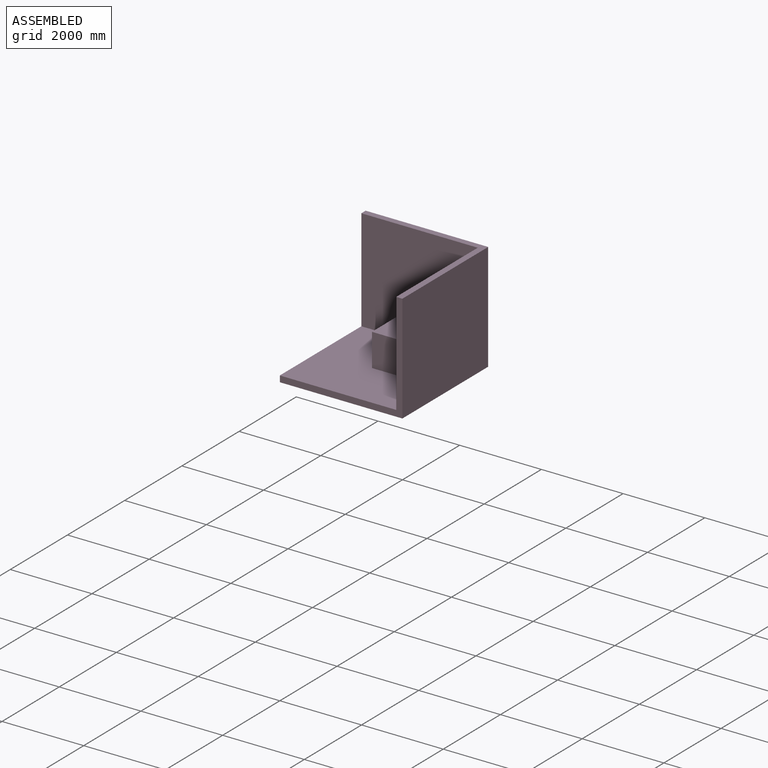
[diagram: assembled view]
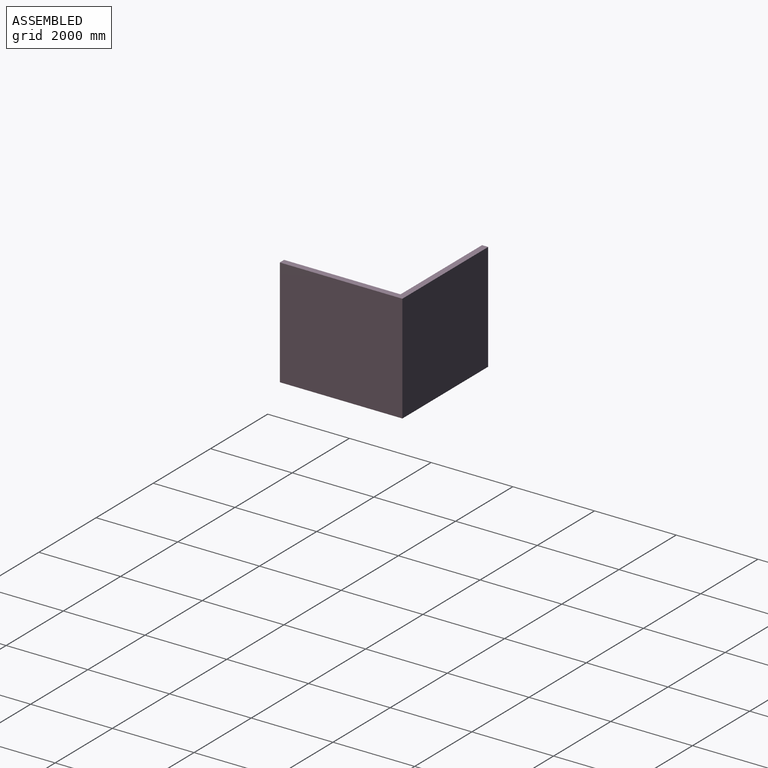
[diagram: assembled view, second angle]
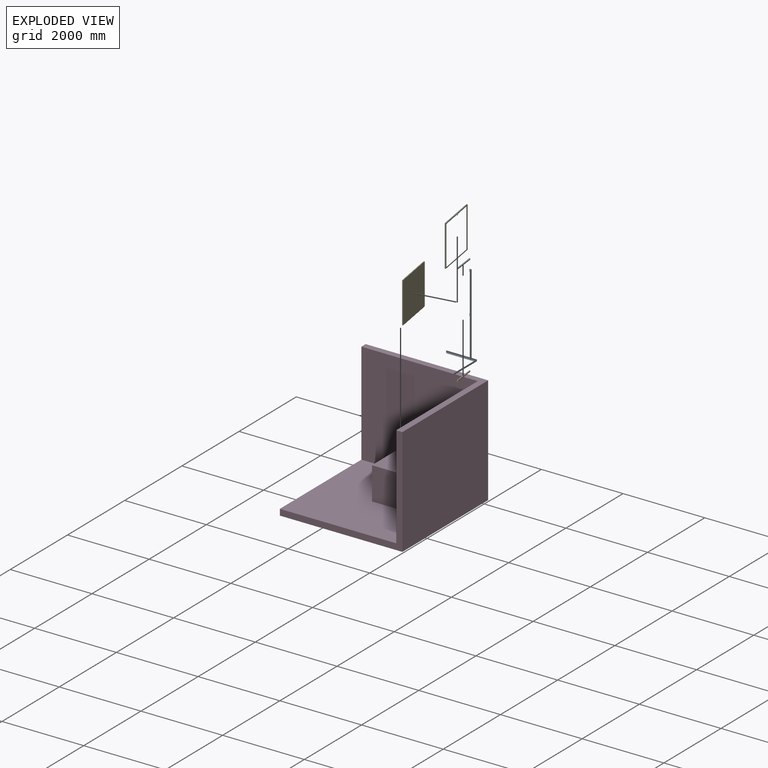
[diagram: exploded view]
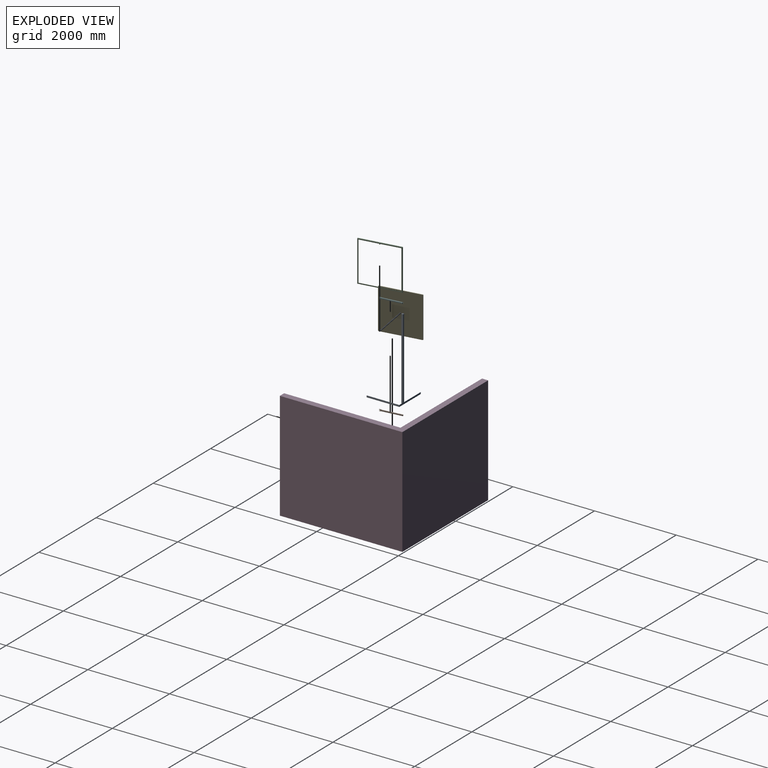
[diagram: exploded view, second angle]
ASSEMBLY  parts=6 mates=6
PART A: 41 faces, bbox 750x800x2000 mm
  f0: plane 942x34mm, normal (0,1,0), area 32028mm2, adj f23,f24,f28,f32
  f1: plane 34x27mm, normal (1,0,0), area 918mm2, adj f2,f14,f29,f31
  f2: plane 34x27mm, normal (0,1,0), area 918mm2, adj f1,f23,f29,f31
  f3: plane 974x34mm, normal (1,0,0), area 33116mm2, adj f7,f14,f19,f30
  f4: plane 34x27mm, normal (0,1,0), area 918mm2, adj f5,f23,f26,f27
  f5: plane 34x27mm, normal (1,0,0), area 918mm2, adj f4,f14,f26,f27
  f6: plane 794x124mm, normal (0,0,1), area 29478mm2, adj f8,f14,f15,f18,f20,f22
  f7: plane 614x34mm, normal (0,0,1), area 20298mm2, adj f3,f14,f19,f21
  f8: plane 124x34mm, normal (0,1,0), area 4216mm2, adj f6,f9,f18,f22
  f9: plane 800x130mm, normal (0,0,1), area 5544mm2, adj f8,f11,f12,f16,f18,f22
  f10: plane 580x6mm, normal (0,0,1), area 3480mm2, adj f12,f13,f19,f23
  f11: plane 800x40mm, normal (-1,0,0), area 32000mm2, adj f9,f12,f16,f17
  f12: plane 2000x750mm, normal (0,-1,0), area 108400mm2, adj f9,f10,f11,f13,f17,f22,f23,f25
  f13: plane 40x6mm, normal (1,0,0), area 240mm2, adj f10,f12,f17,f19,f21
  f14: plane 2000x676mm, normal (0,1,0), area 16536mm2, adj f1,f3,f5,f6,f7,f15,f17,f21
  f15: plane 726x6mm, normal (1,0,0), area 4356mm2, adj f6,f14,f17,f20
  f16: plane 40x6mm, normal (0,1,0), area 240mm2, adj f9,f11,f17,f18,f20
  f17: plane 800x750mm, normal (0,0,-1), area 59244mm2, adj f11,f12,f13,f14,f15,f16,f20,f21
  f18: plane 794x34mm, normal (1,0,0), area 26996mm2, adj f6,f8,f9,f16
  f19: plane 974x614mm, normal (0,1,0), area 52836mm2, adj f3,f7,f10,f13,f23,f30
  f20: plane 34x34mm, normal (0.71,0.71,0), area 288.5mm2, adj f6,f15,f16,f17
  f21: plane 34x34mm, normal (0.71,0.71,0), area 288.5mm2, adj f7,f13,f14,f17
  f22: plane 1994x40mm, normal (-1,0,0), area 79556mm2, adj f6,f8,f9,f12,f14,f25
  f23: plane 1960x27.5mm, normal (1,0,0), area 12276mm2, adj f0,f2,f4,f10,f12,f19,f25,f26
  f24: plane 942x34mm, normal (1,0,0), area 32028mm2, adj f0,f14,f28,f32
  f25: plane 40x40mm, normal (0,0,1), area 1487.9mm2, adj f12,f14,f22,f23,f36,f40
  f26: plane 34x34mm, normal (0,0,-1), area 1043.9mm2, adj f4,f5,f14,f23,f36,f40
  f27: plane 34x34mm, normal (0,0,1), area 1043.9mm2, adj f4,f5,f14,f23,f35,f39
  f28: plane 34x34mm, normal (0,0,-1), area 1043.9mm2, adj f0,f14,f23,f24,f35,f39
  f29: plane 34x34mm, normal (0,0,1), area 1043.9mm2, adj f1,f2,f14,f23,f34,f38
  f30: plane 34x34mm, normal (0,0,-1), area 1043.9mm2, adj f3,f14,f19,f23,f34,f38
  f31: plane 34x34mm, normal (0,0,-1), area 1043.9mm2, adj f1,f2,f14,f23,f33,f37
  f32: plane 34x34mm, normal (0,0,1), area 1043.9mm2, adj f0,f14,f23,f24,f33,f37
  f33: cylinder r=5mm len=10mm, axis (0,0,1), area 188.5mm2, adj f31,f32
  f34: cylinder r=5mm len=10mm, axis (0,0,1), area 188.5mm2, adj f29,f30
  f35: cylinder r=5mm len=10mm, axis (0,0,1), area 188.5mm2, adj f27,f28
  f36: cylinder r=5mm len=10mm, axis (0,0,1), area 188.5mm2, adj f25,f26
  f37: cylinder r=12.5mm len=12.5mm, axis (0,0,1), area 117.8mm2, adj f14,f23,f31,f32
  f38: cylinder r=12.5mm len=12.5mm, axis (0,0,1), area 117.8mm2, adj f14,f23,f29,f30
  f39: cylinder r=12.5mm len=12.5mm, axis (0,0,1), area 117.8mm2, adj f14,f23,f27,f28
  f40: cylinder r=12.5mm len=12.5mm, axis (0,0,1), area 117.8mm2, adj f14,f23,f25,f26
PART B: 22 faces, bbox 25x35x550 mm
  f0: plane 505x25mm, normal (0,1,0), area 12479.4mm2, adj f4,f5,f9,f11,f15
  f1: plane 515.62x19mm, normal (-1,0,0), area 9796.9mm2, adj f2,f7,f8,f11
  f2: plane 520x19mm, normal (0,1,0), area 9776mm2, adj f1,f3,f8,f10,f11
  f3: plane 515.62x19mm, normal (1,0,0), area 9796.9mm2, adj f2,f7,f8,f11
  f4: plane 525x35mm, normal (1,0,0), area 13012.5mm2, adj f0,f6,f8,f11,f12,f13,f14,f15
  f5: plane 525x35mm, normal (-1,0,0), area 13012.5mm2, adj f0,f6,f8,f11,f12,f13,f14,f15
  f6: plane 505x25mm, normal (0,-1,0), area 12479.4mm2, adj f4,f5,f10,f11,f13
  f7: plane 520x19mm, normal (0,-1,0), area 9776mm2, adj f1,f3,f8,f9,f11
  f8: plane 25x25mm, normal (0,0,1), area 264mm2, adj f1,f2,f3,f4,f5,f7,f12,f17
  f9: cylinder r=5mm len=10mm, axis (0,-1,0), area 94.2mm2, adj f0,f7
  f10: cylinder r=5mm len=10mm, axis (0,-1,0), area 94.2mm2, adj f2,f6
  f11: cylinder r=12.5mm len=25mm, axis (0,1,0), area 571.7mm2, adj f0,f1,f2,f3,f4,f5,f6,f7
  f12: plane 30x25mm, normal (0,1,0), area 604.4mm2, adj f4,f5,f8,f19,f21
  f13: plane 25x5mm, normal (0,0,-1), area 125mm2, adj f4,f5,f6,f14
  f14: plane 45x25mm, normal (0,-1,0), area 979.4mm2, adj f4,f5,f13,f19,f21
  f15: plane 25x5mm, normal (0,0,-1), area 125mm2, adj f0,f4,f5,f16
  f16: plane 45x25mm, normal (0,1,0), area 979.4mm2, adj f4,f5,f15,f18,f20
  f17: plane 30x25mm, normal (0,-1,0), area 604.4mm2, adj f4,f5,f8,f18,f20
  f18: cylinder r=5mm len=10mm, axis (0,-1,0), area 157.1mm2, adj f16,f17
  f19: cylinder r=5mm len=10mm, axis (0,-1,0), area 157.1mm2, adj f12,f14
  f20: cylinder r=12.5mm len=25mm, axis (0,-1,0), area 196.3mm2, adj f4,f5,f16,f17
  f21: cylinder r=12.5mm len=25mm, axis (0,-1,0), area 196.3mm2, adj f4,f5,f12,f14
PART C: 42 faces, bbox 1006x51x1006 mm
  f0: plane 5x3mm, normal (0,1,0), area 15mm2, adj f8,f19,f40,f41
  f1: plane 5x3mm, normal (0,1,0), area 15mm2, adj f3,f27,f38,f39
  f2: plane 1006x490.5mm, normal (0,1,0), area 48425mm2, adj f3,f5,f6,f7,f8,f10,f18,f26
  f3: plane 1006x51mm, normal (0,0,-1), area 25678.5mm2, adj f1,f2,f4,f10,f12,f17,f26,f31
  f4: plane 1006x25mm, normal (1,0,0), area 25150mm2, adj f3,f5,f12,f17
  f5: plane 1006x51mm, normal (0,0,1), area 25678.5mm2, adj f2,f4,f10,f12,f17,f18,f23,f24
  f6: plane 956x29mm, normal (0,0,1), area 3396.5mm2, adj f2,f7,f9,f11,f12,f26,f31,f32
  f7: plane 956x3mm, normal (1,0,0), area 2868mm2, adj f2,f6,f8,f11
  f8: plane 956x29mm, normal (0,0,-1), area 3396.5mm2, adj f0,f2,f7,f9,f11,f12,f18,f23
  f9: plane 956x3mm, normal (-1,0,0), area 2868mm2, adj f6,f8,f11,f12
  f10: plane 1006x25mm, normal (-1,0,0), area 25150mm2, adj f2,f3,f5,f17
  f11: plane 1000x1000mm, normal (0,-1,0), area 86064mm2, adj f6,f7,f8,f9,f13,f14,f15,f16
  f12: plane 1006x490.5mm, normal (0,1,0), area 48425mm2, adj f3,f4,f5,f6,f8,f9,f23,f31
  f13: plane 1000x22mm, normal (0,0,-1), area 22000mm2, adj f11,f14,f16,f17
  f14: plane 1000x22mm, normal (-1,0,0), area 22000mm2, adj f11,f13,f15,f17
  f15: plane 1000x22mm, normal (0,0,1), area 22000mm2, adj f11,f14,f16,f17
  f16: plane 1000x22mm, normal (1,0,0), area 22000mm2, adj f11,f13,f15,f17
  f17: plane 1006x1006mm, normal (0,-1,0), area 12036mm2, adj f3,f4,f5,f10,f13,f14,f15,f16
  f18: plane 25x16mm, normal (-1,0,0), area 400mm2, adj f2,f5,f8,f40
  f19: plane 26x19mm, normal (0,0,1), area 403mm2, adj f0,f20,f22,f25,f37,f40,f41
  f20: plane 23.14x19mm, normal (-1,0,0), area 439.7mm2, adj f19,f21,f25,f41
  f21: plane 26x19mm, normal (0,0,-1), area 403mm2, adj f20,f22,f24,f25,f36,f40,f41
  f22: plane 23.14x19mm, normal (1,0,0), area 439.7mm2, adj f19,f21,f25,f40
  f23: plane 25x16mm, normal (1,0,0), area 400mm2, adj f5,f8,f12,f41
  f24: plane 5x3mm, normal (0,1,0), area 15mm2, adj f5,f21,f40,f41
  f25: plane 19x19mm, normal (0,1,0), area 361mm2, adj f19,f20,f21,f22
  f26: plane 25x16mm, normal (-1,0,0), area 400mm2, adj f2,f3,f6,f38
  f27: plane 26x19mm, normal (0,0,1), area 403mm2, adj f1,f28,f30,f33,f35,f38,f39
  f28: plane 23.14x19mm, normal (-1,0,0), area 439.7mm2, adj f27,f29,f33,f39
  f29: plane 26x19mm, normal (0,0,-1), area 403mm2, adj f28,f30,f32,f33,f34,f38,f39
  f30: plane 23.14x19mm, normal (1,0,0), area 439.7mm2, adj f27,f29,f33,f38
  f31: plane 25x16mm, normal (1,0,0), area 400mm2, adj f3,f6,f12,f39
  f32: plane 5x3mm, normal (0,1,0), area 15mm2, adj f6,f29,f38,f39
  f33: plane 19x19mm, normal (0,1,0), area 361mm2, adj f27,f28,f29,f30
  f34: cylinder r=5mm len=10mm, axis (0,0,1), area 94.2mm2, adj f6,f29
  f35: cylinder r=5mm len=10mm, axis (0,0,1), area 94.2mm2, adj f3,f27
  f36: cylinder r=5mm len=10mm, axis (0,0,1), area 94.2mm2, adj f5,f21
  f37: cylinder r=5mm len=10mm, axis (0,0,1), area 94.2mm2, adj f8,f19
  f38: cylinder r=10mm len=25mm, axis (0,0,-1), area 245.4mm2, adj f1,f3,f6,f26,f27,f29,f30,f32
  f39: cylinder r=10mm len=25mm, axis (0,0,1), area 245.4mm2, adj f1,f3,f6,f27,f28,f29,f31,f32
  f40: cylinder r=10mm len=25mm, axis (0,0,-1), area 245.4mm2, adj f0,f5,f8,f18,f19,f21,f22,f24
  f41: cylinder r=10mm len=25mm, axis (0,0,1), area 245.4mm2, adj f0,f5,f8,f19,f20,f21,f23,f24
PART D: 13 faces, bbox 3000x3000x2650 mm
  f0: plane 2850x2850mm, normal (0,0,1), area 6997500mm2, adj f1,f4,f6,f7,f9,f10,f11
  f1: plane 3000x2650mm, normal (0,-1,0), area 825000mm2, adj f0,f2,f4,f5,f6,f8
  f2: plane 3000x2650mm, normal (1,0,0), area 7950000mm2, adj f1,f3,f5,f8
  f3: plane 3000x2650mm, normal (0,1,0), area 7950000mm2, adj f2,f4,f5,f8
  f4: plane 3000x2650mm, normal (-1,0,0), area 825000mm2, adj f0,f1,f3,f5,f7,f8
  f5: plane 3000x3000mm, normal (0,0,-1), area 9000000mm2, adj f1,f2,f3,f4
  f6: plane 2850x2500mm, normal (-1,0,0), area 7125000mm2, adj f0,f1,f7,f8
  f7: plane 2850x2500mm, normal (0,-1,0), area 6525000mm2, adj f0,f4,f6,f8,f9,f10,f12
  f8: plane 3000x3000mm, normal (0,0,1), area 877500mm2, adj f1,f2,f3,f4,f6,f7
  f9: plane 1500x800mm, normal (1,0,0), area 1200000mm2, adj f0,f7,f11,f12
  f10: plane 1500x800mm, normal (-1,0,0), area 1200000mm2, adj f0,f7,f11,f12
  f11: plane 800x750mm, normal (0,-1,0), area 600000mm2, adj f0,f9,f10,f12
  f12: plane 1500x750mm, normal (0,0,1), area 1125000mm2, adj f7,f9,f10,f11
PART E: 15 faces, bbox 1000x20x1000 mm
  f0: plane 1000x1000mm, normal (0,-1,0), area 78314.2mm2, adj f1,f2,f3,f4,f6,f7,f8,f9
  f1: plane 980x20mm, normal (0,0,-1), area 19600mm2, adj f0,f5,f11,f14
  f2: plane 980x20mm, normal (1,0,0), area 19600mm2, adj f0,f5,f11,f12
  f3: plane 980x20mm, normal (0,0,1), area 19600mm2, adj f0,f5,f12,f13
  f4: plane 980x20mm, normal (-1,0,0), area 19600mm2, adj f0,f5,f13,f14
  f5: plane 1000x1000mm, normal (0,1,0), area 999914.2mm2, adj f1,f2,f3,f4,f11,f12,f13,f14
  f6: plane 960x3mm, normal (0,0,1), area 2880mm2, adj f0,f7,f9,f10
  f7: plane 960x3mm, normal (-1,0,0), area 2880mm2, adj f0,f6,f8,f10
  f8: plane 960x3mm, normal (0,0,-1), area 2880mm2, adj f0,f7,f9,f10
  f9: plane 960x3mm, normal (1,0,0), area 2880mm2, adj f0,f6,f8,f10
  f10: plane 960x960mm, normal (0,-1,0), area 921600mm2, adj f6,f7,f8,f9
  f11: cylinder r=10mm len=20mm, axis (0,-1,0), area 314.2mm2, adj f0,f1,f2,f5
  f12: cylinder r=10mm len=20mm, axis (0,1,0), area 314.2mm2, adj f0,f2,f3,f5
  f13: cylinder r=10mm len=20mm, axis (0,-1,0), area 314.2mm2, adj f0,f3,f4,f5
  f14: cylinder r=10mm len=20mm, axis (0,1,0), area 314.2mm2, adj f0,f1,f4,f5
PART F: same geometry as B
PLACE A rot(axis=(0,0,1),180deg) t=(2850,2820,150)mm
PLACE B rot(axis=(1,0.06,0.06),90.2deg) t=(2691.01,2804.91,1149.5)mm
PLACE C rot(axis=(0,0,-1),80.7deg) t=(2741.65,2269.05,1640)mm
PLACE D t=(1500,1500,0)mm
PLACE E rot(axis=(0,0,-1),80.7deg) t=(2738.69,2268.57,1640)mm
PLACE F rot(axis=(1,0.06,0.06),90.2deg) t=(2691.01,2804.91,2130.5)mm
MATE fastened A.f17 <-> D.f0  axis (0,0,-1) through (2850,2820,150)mm
MATE revolute B.f18 <-> C.f34  axis (0,0,-1) through (2754.97,2271.23,1162)mm
MATE revolute B.f9 <-> A.f33  axis (0,0,1) through (2692.5,2792.5,1162)mm
MATE revolute F.f9 <-> A.f33  axis (0,0,1) through (2692.5,2792.5,2143)mm
MATE fastened E.f5 <-> C.f11  axis (0.99,0.16,0) through (2738.69,2268.57,2140)mm
MATE revolute F.f18 <-> C.f34  axis (0,0,-1) through (2754.97,2271.23,2143)mm
